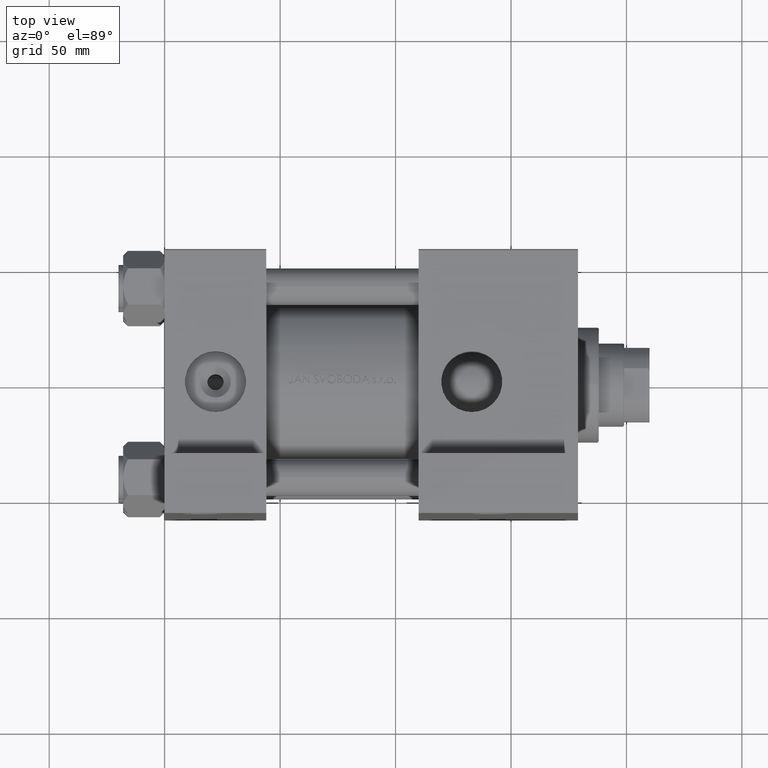
[diagram: clean part render]
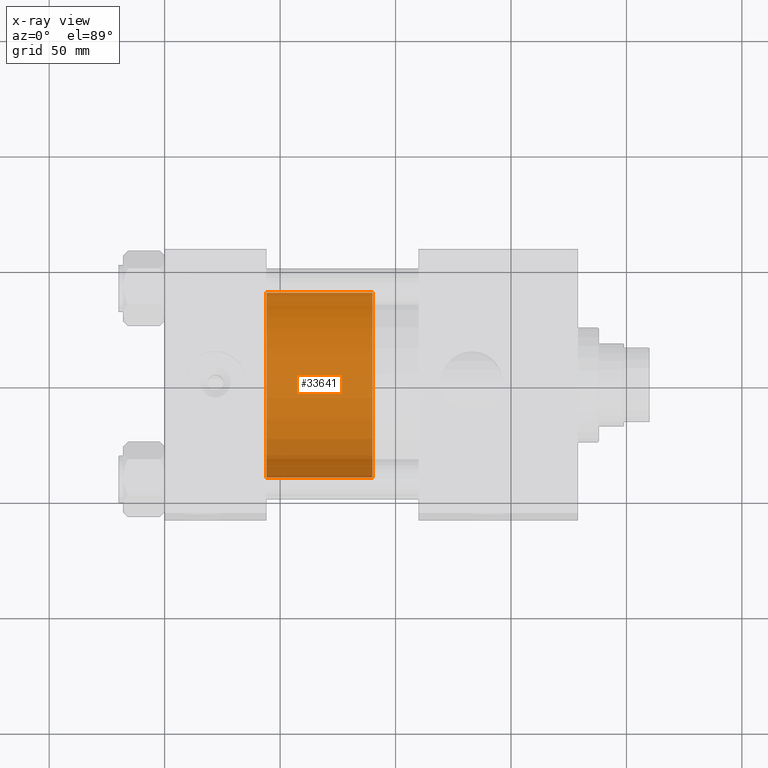
[diagram: x-ray — body ghosted, one internal face saturated and labeled with its STEP entity id]
A machine part, top view, then the same camera in x-ray: the body is ghosted and one INTERNAL B-rep face — a face not visible from any outside direction — is saturated and labeled: STEP entity #33641.
In plain terms, the highlighted cylindrical surface (partial cylindrical patch) has radius 40 mm, axis along (-1, 0, 0).
Its self-contained STEP definition (entity closure, byte-faithful):
#28 = VERTEX_POINT ( 'NONE', #40616 ) ;
#599 = VERTEX_POINT ( 'NONE', #13512 ) ;
#2263 = CIRCLE ( 'NONE', #16988, 40.00000000000000000 ) ;
#3570 = LINE ( 'NONE', #44584, #13049 ) ;
#6463 = VERTEX_POINT ( 'NONE', #24938 ) ;
#6843 = CYLINDRICAL_SURFACE ( 'NONE', #30906, 40.00000000000000000 ) ;
#7343 = VERTEX_POINT ( 'NONE', #41680 ) ;
#8848 = ORIENTED_EDGE ( 'NONE', *, *, #30037, .T. ) ;
#9696 = CIRCLE ( 'NONE', #16633, 40.00000000000000000 ) ;
#10010 = LINE ( 'NONE', #39608, #45457 ) ;
#13049 = VECTOR ( 'NONE', #14247, 1000.000000000000000 ) ;
#13512 = CARTESIAN_POINT ( 'NONE',  ( -40.00000000000000000, 0.000000000000000000, 0.000000000000000000 ) ) ;
#13933 = ORIENTED_EDGE ( 'NONE', *, *, #27903, .F. ) ;
#14113 = ORIENTED_EDGE ( 'NONE', *, *, #25174, .T. ) ;
#14247 = DIRECTION ( 'NONE',  ( -0.000000000000000000, -0.000000000000000000, -1.000000000000000000 ) ) ;
#15336 = EDGE_CURVE ( 'NONE', #28, #6463, #9696, .T. ) ;
#16633 = AXIS2_PLACEMENT_3D ( 'NONE', #44407, #18429, #36651 ) ;
#16988 = AXIS2_PLACEMENT_3D ( 'NONE', #38956, #27795, #28524 ) ;
#18003 = CARTESIAN_POINT ( 'NONE',  ( 0.000000000000000000, 0.000000000000000000, 46.00000000000000000 ) ) ;
#18180 = ORIENTED_EDGE ( 'NONE', *, *, #15336, .F. ) ;
#18429 = DIRECTION ( 'NONE',  ( 0.000000000000000000, 0.000000000000000000, 1.000000000000000000 ) ) ;
#24938 = CARTESIAN_POINT ( 'NONE',  ( -40.00000000000000000, 0.000000000000000000, 46.00000000000000000 ) ) ;
#25174 = EDGE_CURVE ( 'NONE', #28, #7343, #10010, .T. ) ;
#26348 = EDGE_LOOP ( 'NONE', ( #18180, #14113, #8848, #13933 ) ) ;
#26425 = DIRECTION ( 'NONE',  ( -1.000000000000000000, 0.000000000000000000, 0.000000000000000000 ) ) ;
#27795 = DIRECTION ( 'NONE',  ( 0.000000000000000000, 0.000000000000000000, 1.000000000000000000 ) ) ;
#27903 = EDGE_CURVE ( 'NONE', #6463, #599, #3570, .T. ) ;
#28524 = DIRECTION ( 'NONE',  ( 1.000000000000000000, 0.000000000000000000, 0.000000000000000000 ) ) ;
#30037 = EDGE_CURVE ( 'NONE', #7343, #599, #2263, .T. ) ;
#30906 = AXIS2_PLACEMENT_3D ( 'NONE', #18003, #46415, #26425 ) ;
#33641 = ADVANCED_FACE ( 'NONE', ( #40093 ), #6843, .T. ) ;
#36651 = DIRECTION ( 'NONE',  ( 1.000000000000000000, 0.000000000000000000, 0.000000000000000000 ) ) ;
#38956 = CARTESIAN_POINT ( 'NONE',  ( 0.000000000000000000, 0.000000000000000000, 0.000000000000000000 ) ) ;
#39356 = DIRECTION ( 'NONE',  ( -0.000000000000000000, -0.000000000000000000, -1.000000000000000000 ) ) ;
#39608 = CARTESIAN_POINT ( 'NONE',  ( 40.00000000000000000, 4.898587196589413026E-15, 46.00000000000000000 ) ) ;
#40093 = FACE_OUTER_BOUND ( 'NONE', #26348, .T. ) ;
#40616 = CARTESIAN_POINT ( 'NONE',  ( 40.00000000000000000, 4.898587196589413026E-15, 46.00000000000000000 ) ) ;
#41680 = CARTESIAN_POINT ( 'NONE',  ( 40.00000000000000000, 4.898587196589413026E-15, 0.000000000000000000 ) ) ;
#44407 = CARTESIAN_POINT ( 'NONE',  ( 0.000000000000000000, 0.000000000000000000, 46.00000000000000000 ) ) ;
#44584 = CARTESIAN_POINT ( 'NONE',  ( -40.00000000000000000, 0.000000000000000000, 46.00000000000000000 ) ) ;
#45457 = VECTOR ( 'NONE', #39356, 1000.000000000000000 ) ;
#46415 = DIRECTION ( 'NONE',  ( -0.000000000000000000, -0.000000000000000000, -1.000000000000000000 ) ) ;